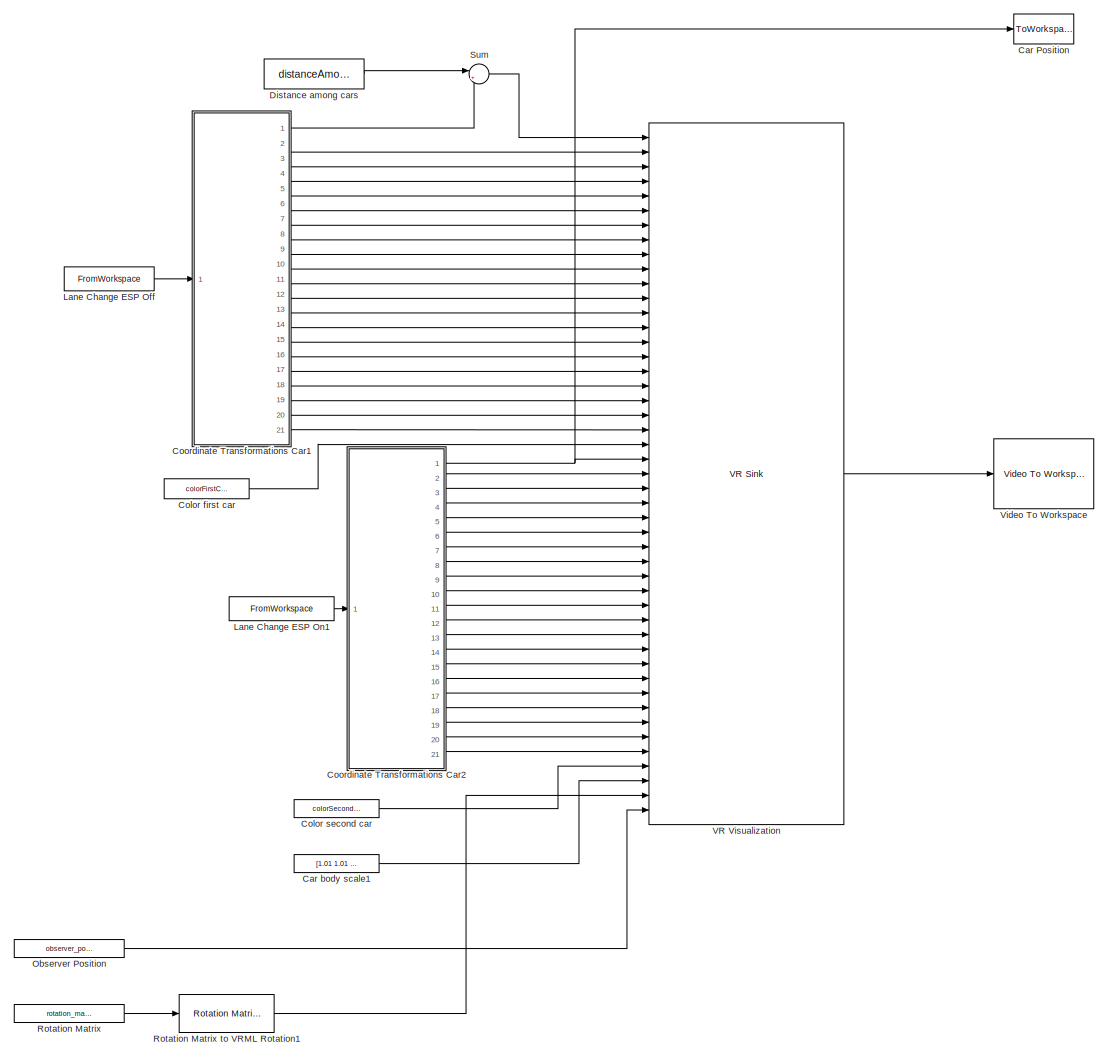
[diagram: root canvas - part 1/1, most of the canvas]
MODEL slx_81a003fe5353
KIND model
CONFIG AbsTol = auto
CONFIG FixedStep = auto
CONFIG MaxStep = auto
CONFIG MinStep = auto
CONFIG RelTol = 1e-3
CONFIG SampleTimeConstraint = Unconstrained
CONFIG Solver = VariableStepAuto
CONFIG SolverMode = Auto
CONFIG SolverName = VariableStepAuto
CONFIG StartTime = start_time
CONFIG StopTime = stop_time
BLOCK [ToWorkspace] Car Position
  FixptAsFi = on
  MaxDataPoints = 1
  Ports = [1]
  SampleTime = -1
  Save2DSignal = 3-D array (concatenate along third dimension)
  VariableName = car_position
BLOCK [Constant] Car body scale1
  Value = [1.01 1.01 1.01]
BLOCK [Constant] Color first car
  Value = colorFirstCar
BLOCK [Constant] Color second car
  Value = colorSecondCar
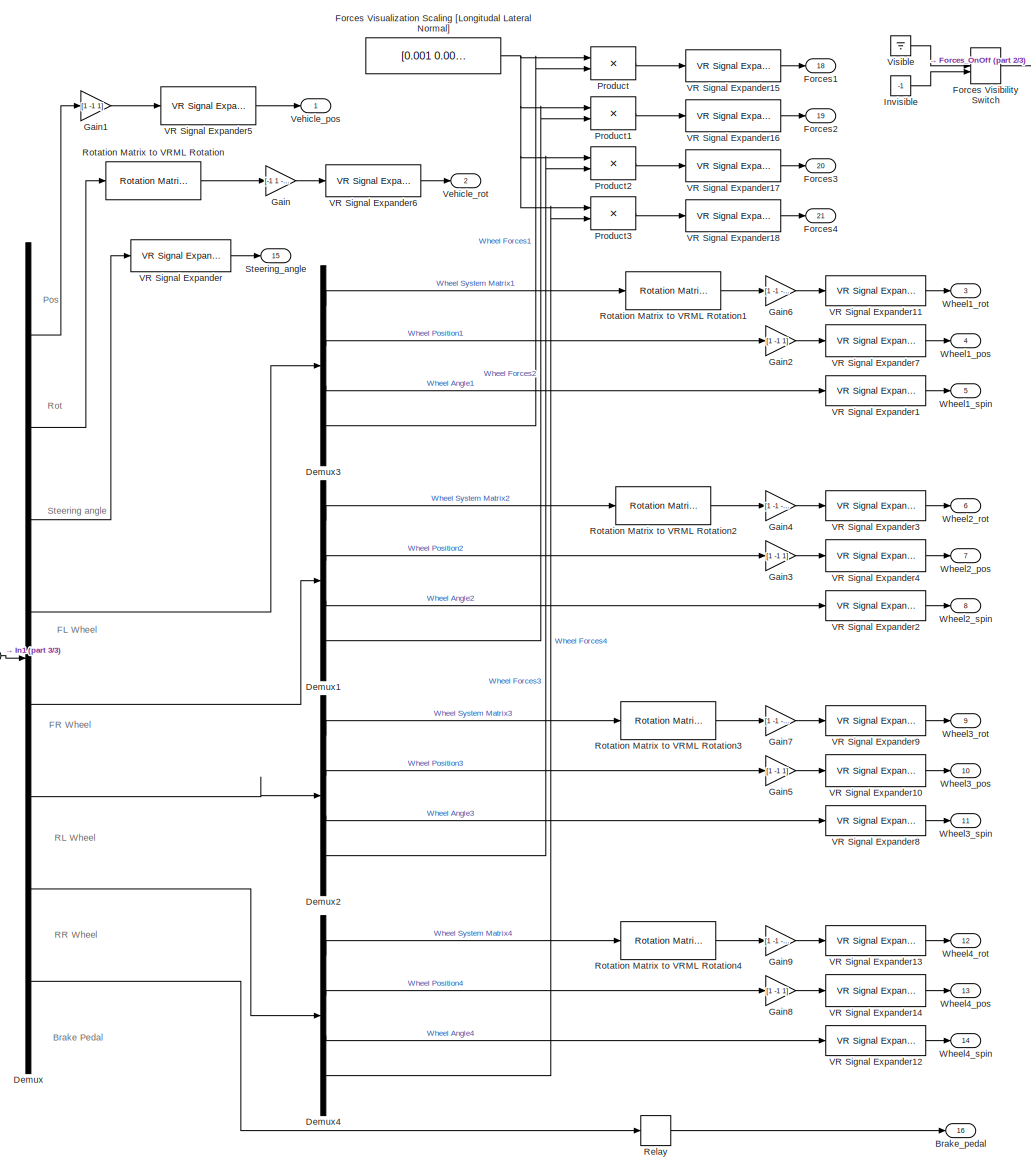
[diagram: Coordinate Transformations Car1 - part 1/3, most of the canvas]
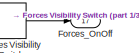
[diagram: Coordinate Transformations Car1 - part 2/3, top right region]
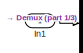
[diagram: Coordinate Transformations Car1 - part 3/3, middle left region]
BLOCK [SubSystem] Coordinate Transformations Car1
  Ports = [1, 21]
  RequestExecContextInheritance = off
  Variant = off
BLOCK [Outport] Coordinate Transformations Car1/Brake_pedal
  IconDisplay = Port number
  Port = 16
BLOCK [Demux] Coordinate Transformations Car1/Demux
  Outputs = [3,9,1,16,16,16,16,1]
  Ports = [1, 8]
BLOCK [Demux] Coordinate Transformations Car1/Demux1
  Outputs = [9,3,1,3]
  Ports = [1, 4]
BLOCK [Demux] Coordinate Transformations Car1/Demux2
  Outputs = [9,3,1,3]
  Ports = [1, 4]
BLOCK [Demux] Coordinate Transformations Car1/Demux3
  Outputs = [9,3,1,3]
  Ports = [1, 4]
BLOCK [Demux] Coordinate Transformations Car1/Demux4
  Outputs = [9,3,1,3]
  Ports = [1, 4]
BLOCK [ManualSwitch] Coordinate Transformations Car1/Forces Visibility Switch
BLOCK [Constant] Coordinate Transformations Car1/Forces Visualization Scaling [Longitudal Lateral Normal]
  Value = [0.001 0.001 0.00025]
BLOCK [Outport] Coordinate Transformations Car1/Forces1
  IconDisplay = Port number
  Port = 18
BLOCK [Outport] Coordinate Transformations Car1/Forces2
  IconDisplay = Port number
  Port = 19
BLOCK [Outport] Coordinate Transformations Car1/Forces3
  IconDisplay = Port number
  Port = 20
BLOCK [Outport] Coordinate Transformations Car1/Forces4
  IconDisplay = Port number
  Port = 21
BLOCK [Outport] Coordinate Transformations Car1/Forces_OnOff
  IconDisplay = Port number
  Port = 17
BLOCK [Gain] Coordinate Transformations Car1/Gain
  Gain = [-1 1 -1 1]
BLOCK [Gain] Coordinate Transformations Car1/Gain1
  Gain = [1 -1 1]
BLOCK [Gain] Coordinate Transformations Car1/Gain2
  Gain = [1 -1 1]
BLOCK [Gain] Coordinate Transformations Car1/Gain3
  Gain = [1 -1 1]
BLOCK [Gain] Coordinate Transformations Car1/Gain4
  Gain = [1 -1 -1 1]
BLOCK [Gain] Coordinate Transformations Car1/Gain5
  Gain = [1 -1 1]
BLOCK [Gain] Coordinate Transformations Car1/Gain6
  Gain = [1 -1 -1 1]
BLOCK [Gain] Coordinate Transformations Car1/Gain7
  Gain = [1 -1 -1 1]
BLOCK [Gain] Coordinate Transformations Car1/Gain8
  Gain = [1 -1 1]
BLOCK [Gain] Coordinate Transformations Car1/Gain9
  Gain = [1 -1 -1 1]
BLOCK [Inport] Coordinate Transformations Car1/In1
  IconDisplay = Port number
BLOCK [Constant] Coordinate Transformations Car1/Invisible
  Value = -1
BLOCK [Product] Coordinate Transformations Car1/Product
  InputSameDT = off
  Ports = [2, 1]
  RndMeth = Floor
BLOCK [Product] Coordinate Transformations Car1/Product1
  InputSameDT = off
  Ports = [2, 1]
  RndMeth = Floor
BLOCK [Product] Coordinate Transformations Car1/Product2
  InputSameDT = off
  Ports = [2, 1]
  RndMeth = Floor
BLOCK [Product] Coordinate Transformations Car1/Product3
  InputSameDT = off
  Ports = [2, 1]
  RndMeth = Floor
BLOCK [Relay] Coordinate Transformations Car1/Relay
BLOCK [Reference] Coordinate Transformations Car1/Rotation Matrix to VRML Rotation  REF=vrlib/Utilities/Rotation Matrix
to VRML Rotation
  Ports = [1, 1]
  SourceBlock = vrlib/Utilities/Rotation Matrix\nto VRML Rotation
  SourceType = Rotation Matrix to VRML Rotation
BLOCK [Reference] Coordinate Transformations Car1/Rotation Matrix to VRML Rotation1  REF=vrlib/Utilities/Rotation Matrix
to VRML Rotation
  Ports = [1, 1]
  SourceBlock = vrlib/Utilities/Rotation Matrix\nto VRML Rotation
  SourceType = Rotation Matrix to VRML Rotation
BLOCK [Reference] Coordinate Transformations Car1/Rotation Matrix to VRML Rotation2  REF=vrlib/Utilities/Rotation Matrix
to VRML Rotation
  Ports = [1, 1]
  SourceBlock = vrlib/Utilities/Rotation Matrix\nto VRML Rotation
  SourceType = Rotation Matrix to VRML Rotation
BLOCK [Reference] Coordinate Transformations Car1/Rotation Matrix to VRML Rotation3  REF=vrlib/Utilities/Rotation Matrix
to VRML Rotation
  Ports = [1, 1]
  SourceBlock = vrlib/Utilities/Rotation Matrix\nto VRML Rotation
  SourceType = Rotation Matrix to VRML Rotation
BLOCK [Reference] Coordinate Transformations Car1/Rotation Matrix to VRML Rotation4  REF=vrlib/Utilities/Rotation Matrix
to VRML Rotation
  Ports = [1, 1]
  SourceBlock = vrlib/Utilities/Rotation Matrix\nto VRML Rotation
  SourceType = Rotation Matrix to VRML Rotation
BLOCK [Outport] Coordinate Transformations Car1/Steering_angle
  IconDisplay = Port number
  Port = 15
BLOCK [Reference] Coordinate Transformations Car1/VR Signal Expander  REF=vrlib/VR Signal Expander
  Ports = [1, 1]
  SourceBlock = vrlib/VR Signal Expander
  SourceType = VR Signal Expander
BLOCK [Reference] Coordinate Transformations Car1/VR Signal Expander1  REF=vrlib/VR Signal Expander
  Ports = [1, 1]
  SourceBlock = vrlib/VR Signal Expander
  SourceType = VR Signal Expander
BLOCK [Reference] Coordinate Transformations Car1/VR Signal Expander10  REF=vrlib/VR Signal Expander
  Ports = [1, 1]
  SourceBlock = vrlib/VR Signal Expander
  SourceType = VR Signal Expander
BLOCK [Reference] Coordinate Transformations Car1/VR Signal Expander11  REF=vrlib/VR Signal Expander
  Ports = [1, 1]
  SourceBlock = vrlib/VR Signal Expander
  SourceType = VR Signal Expander
BLOCK [Reference] Coordinate Transformations Car1/VR Signal Expander12  REF=vrlib/VR Signal Expander
  Ports = [1, 1]
  SourceBlock = vrlib/VR Signal Expander
  SourceType = VR Signal Expander
BLOCK [Reference] Coordinate Transformations Car1/VR Signal Expander13  REF=vrlib/VR Signal Expander
  Ports = [1, 1]
  SourceBlock = vrlib/VR Signal Expander
  SourceType = VR Signal Expander
BLOCK [Reference] Coordinate Transformations Car1/VR Signal Expander14  REF=vrlib/VR Signal Expander
  Ports = [1, 1]
  SourceBlock = vrlib/VR Signal Expander
  SourceType = VR Signal Expander
BLOCK [Reference] Coordinate Transformations Car1/VR Signal Expander15  REF=vrlib/VR Signal Expander
  Ports = [1, 1]
  SourceBlock = vrlib/VR Signal Expander
  SourceType = VR Signal Expander
BLOCK [Reference] Coordinate Transformations Car1/VR Signal Expander16  REF=vrlib/VR Signal Expander
  Ports = [1, 1]
  SourceBlock = vrlib/VR Signal Expander
  SourceType = VR Signal Expander
BLOCK [Reference] Coordinate Transformations Car1/VR Signal Expander17  REF=vrlib/VR Signal Expander
  Ports = [1, 1]
  SourceBlock = vrlib/VR Signal Expander
  SourceType = VR Signal Expander
BLOCK [Reference] Coordinate Transformations Car1/VR Signal Expander18  REF=vrlib/VR Signal Expander
  Ports = [1, 1]
  SourceBlock = vrlib/VR Signal Expander
  SourceType = VR Signal Expander
BLOCK [Reference] Coordinate Transformations Car1/VR Signal Expander2  REF=vrlib/VR Signal Expander
  Ports = [1, 1]
  SourceBlock = vrlib/VR Signal Expander
  SourceType = VR Signal Expander
BLOCK [Reference] Coordinate Transformations Car1/VR Signal Expander3  REF=vrlib/VR Signal Expander
  Ports = [1, 1]
  SourceBlock = vrlib/VR Signal Expander
  SourceType = VR Signal Expander
BLOCK [Reference] Coordinate Transformations Car1/VR Signal Expander4  REF=vrlib/VR Signal Expander
  Ports = [1, 1]
  SourceBlock = vrlib/VR Signal Expander
  SourceType = VR Signal Expander
BLOCK [Reference] Coordinate Transformations Car1/VR Signal Expander5  REF=vrlib/VR Signal Expander
  Ports = [1, 1]
  SourceBlock = vrlib/VR Signal Expander
  SourceType = VR Signal Expander
BLOCK [Reference] Coordinate Transformations Car1/VR Signal Expander6  REF=vrlib/VR Signal Expander
  Ports = [1, 1]
  SourceBlock = vrlib/VR Signal Expander
  SourceType = VR Signal Expander
BLOCK [Reference] Coordinate Transformations Car1/VR Signal Expander7  REF=vrlib/VR Signal Expander
  Ports = [1, 1]
  SourceBlock = vrlib/VR Signal Expander
  SourceType = VR Signal Expander
BLOCK [Reference] Coordinate Transformations Car1/VR Signal Expander8  REF=vrlib/VR Signal Expander
  Ports = [1, 1]
  SourceBlock = vrlib/VR Signal Expander
  SourceType = VR Signal Expander
BLOCK [Reference] Coordinate Transformations Car1/VR Signal Expander9  REF=vrlib/VR Signal Expander
  Ports = [1, 1]
  SourceBlock = vrlib/VR Signal Expander
  SourceType = VR Signal Expander
BLOCK [Outport] Coordinate Transformations Car1/Vehicle_pos
  IconDisplay = Port number
BLOCK [Outport] Coordinate Transformations Car1/Vehicle_rot
  IconDisplay = Port number
  Port = 2
BLOCK [Ground] Coordinate Transformations Car1/Visible
BLOCK [Outport] Coordinate Transformations Car1/Wheel1_pos
  IconDisplay = Port number
  Port = 4
BLOCK [Outport] Coordinate Transformations Car1/Wheel1_rot
  IconDisplay = Port number
  Port = 3
BLOCK [Outport] Coordinate Transformations Car1/Wheel1_spin
  IconDisplay = Port number
  Port = 5
BLOCK [Outport] Coordinate Transformations Car1/Wheel2_pos
  IconDisplay = Port number
  Port = 7
BLOCK [Outport] Coordinate Transformations Car1/Wheel2_rot
  IconDisplay = Port number
  Port = 6
BLOCK [Outport] Coordinate Transformations Car1/Wheel2_spin
  IconDisplay = Port number
  Port = 8
BLOCK [Outport] Coordinate Transformations Car1/Wheel3_pos
  IconDisplay = Port number
  Port = 10
BLOCK [Outport] Coordinate Transformations Car1/Wheel3_rot
  IconDisplay = Port number
  Port = 9
BLOCK [Outport] Coordinate Transformations Car1/Wheel3_spin
  IconDisplay = Port number
  Port = 11
BLOCK [Outport] Coordinate Transformations Car1/Wheel4_pos
  IconDisplay = Port number
  Port = 13
BLOCK [Outport] Coordinate Transformations Car1/Wheel4_rot
  IconDisplay = Port number
  Port = 12
BLOCK [Outport] Coordinate Transformations Car1/Wheel4_spin
  IconDisplay = Port number
  Port = 14
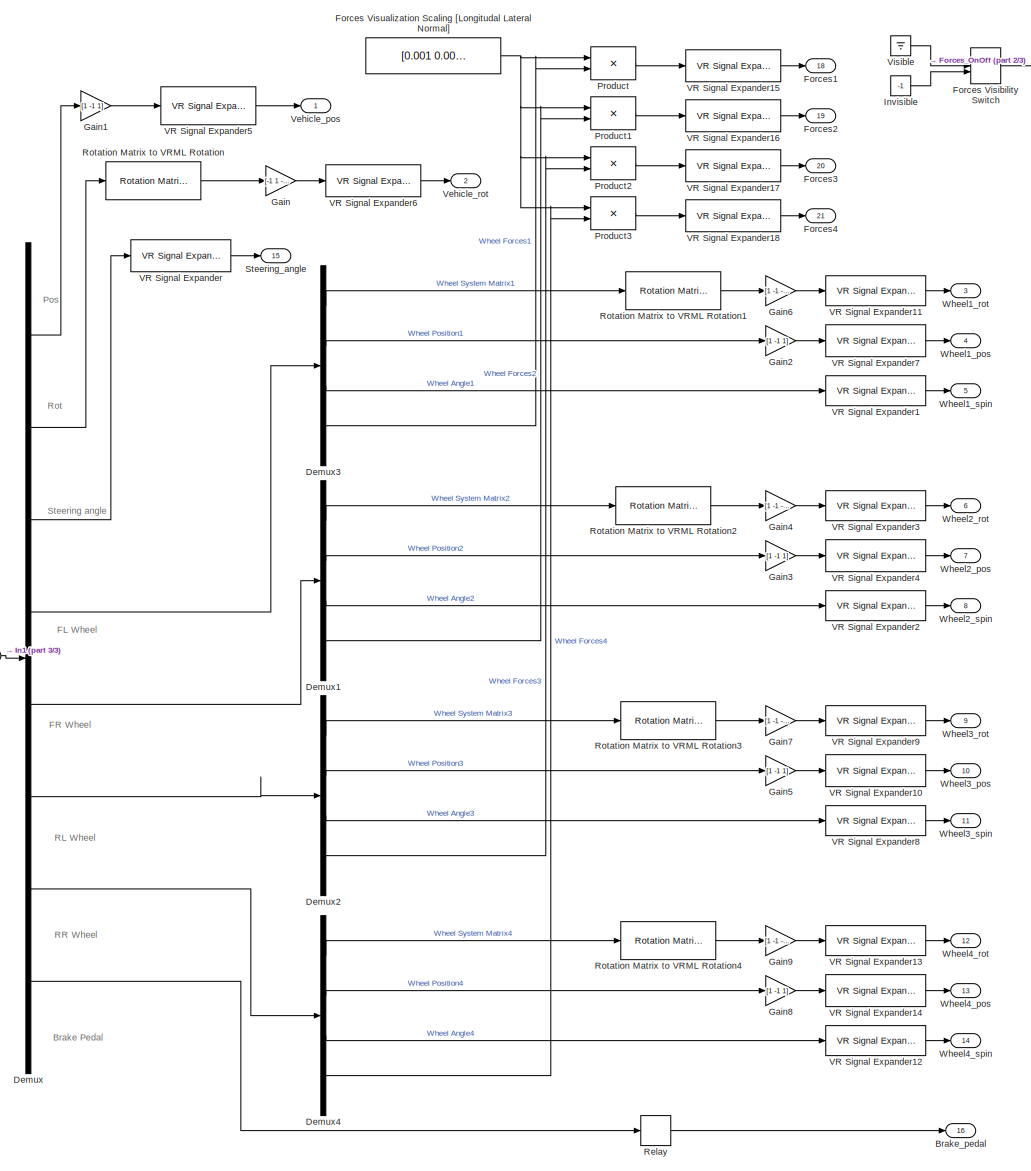
[diagram: Coordinate Transformations Car2 - part 1/3, most of the canvas]
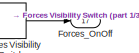
[diagram: Coordinate Transformations Car2 - part 2/3, top right region]
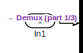
[diagram: Coordinate Transformations Car2 - part 3/3, middle left region]
BLOCK [SubSystem] Coordinate Transformations Car2
  Ports = [1, 21]
  RequestExecContextInheritance = off
  Variant = off
BLOCK [Outport] Coordinate Transformations Car2/Brake_pedal
  IconDisplay = Port number
  Port = 16
BLOCK [Demux] Coordinate Transformations Car2/Demux
  Outputs = [3,9,1,16,16,16,16,1]
  Ports = [1, 8]
BLOCK [Demux] Coordinate Transformations Car2/Demux1
  Outputs = [9,3,1,3]
  Ports = [1, 4]
BLOCK [Demux] Coordinate Transformations Car2/Demux2
  Outputs = [9,3,1,3]
  Ports = [1, 4]
BLOCK [Demux] Coordinate Transformations Car2/Demux3
  Outputs = [9,3,1,3]
  Ports = [1, 4]
BLOCK [Demux] Coordinate Transformations Car2/Demux4
  Outputs = [9,3,1,3]
  Ports = [1, 4]
BLOCK [ManualSwitch] Coordinate Transformations Car2/Forces Visibility Switch
  CurrentSetting = 0
BLOCK [Constant] Coordinate Transformations Car2/Forces Visualization Scaling [Longitudal Lateral Normal]
  Value = [0.001 0.001 0.00025]
BLOCK [Outport] Coordinate Transformations Car2/Forces1
  IconDisplay = Port number
  Port = 18
BLOCK [Outport] Coordinate Transformations Car2/Forces2
  IconDisplay = Port number
  Port = 19
BLOCK [Outport] Coordinate Transformations Car2/Forces3
  IconDisplay = Port number
  Port = 20
BLOCK [Outport] Coordinate Transformations Car2/Forces4
  IconDisplay = Port number
  Port = 21
BLOCK [Outport] Coordinate Transformations Car2/Forces_OnOff
  IconDisplay = Port number
  Port = 17
BLOCK [Gain] Coordinate Transformations Car2/Gain
  Gain = [-1 1 -1 1]
BLOCK [Gain] Coordinate Transformations Car2/Gain1
  Gain = [1 -1 1]
BLOCK [Gain] Coordinate Transformations Car2/Gain2
  Gain = [1 -1 1]
BLOCK [Gain] Coordinate Transformations Car2/Gain3
  Gain = [1 -1 1]
BLOCK [Gain] Coordinate Transformations Car2/Gain4
  Gain = [1 -1 -1 1]
BLOCK [Gain] Coordinate Transformations Car2/Gain5
  Gain = [1 -1 1]
BLOCK [Gain] Coordinate Transformations Car2/Gain6
  Gain = [1 -1 -1 1]
BLOCK [Gain] Coordinate Transformations Car2/Gain7
  Gain = [1 -1 -1 1]
BLOCK [Gain] Coordinate Transformations Car2/Gain8
  Gain = [1 -1 1]
BLOCK [Gain] Coordinate Transformations Car2/Gain9
  Gain = [1 -1 -1 1]
BLOCK [Inport] Coordinate Transformations Car2/In1
  IconDisplay = Port number
BLOCK [Constant] Coordinate Transformations Car2/Invisible
  Value = -1
BLOCK [Product] Coordinate Transformations Car2/Product
  InputSameDT = off
  Ports = [2, 1]
  RndMeth = Floor
BLOCK [Product] Coordinate Transformations Car2/Product1
  InputSameDT = off
  Ports = [2, 1]
  RndMeth = Floor
BLOCK [Product] Coordinate Transformations Car2/Product2
  InputSameDT = off
  Ports = [2, 1]
  RndMeth = Floor
BLOCK [Product] Coordinate Transformations Car2/Product3
  InputSameDT = off
  Ports = [2, 1]
  RndMeth = Floor
BLOCK [Relay] Coordinate Transformations Car2/Relay
BLOCK [Reference] Coordinate Transformations Car2/Rotation Matrix to VRML Rotation  REF=vrlib/Utilities/Rotation Matrix
to VRML Rotation
  Ports = [1, 1]
  SourceBlock = vrlib/Utilities/Rotation Matrix\nto VRML Rotation
  SourceType = Rotation Matrix to VRML Rotation
BLOCK [Reference] Coordinate Transformations Car2/Rotation Matrix to VRML Rotation1  REF=vrlib/Utilities/Rotation Matrix
to VRML Rotation
  Ports = [1, 1]
  SourceBlock = vrlib/Utilities/Rotation Matrix\nto VRML Rotation
  SourceType = Rotation Matrix to VRML Rotation
BLOCK [Reference] Coordinate Transformations Car2/Rotation Matrix to VRML Rotation2  REF=vrlib/Utilities/Rotation Matrix
to VRML Rotation
  Ports = [1, 1]
  SourceBlock = vrlib/Utilities/Rotation Matrix\nto VRML Rotation
  SourceType = Rotation Matrix to VRML Rotation
BLOCK [Reference] Coordinate Transformations Car2/Rotation Matrix to VRML Rotation3  REF=vrlib/Utilities/Rotation Matrix
to VRML Rotation
  Ports = [1, 1]
  SourceBlock = vrlib/Utilities/Rotation Matrix\nto VRML Rotation
  SourceType = Rotation Matrix to VRML Rotation
BLOCK [Reference] Coordinate Transformations Car2/Rotation Matrix to VRML Rotation4  REF=vrlib/Utilities/Rotation Matrix
to VRML Rotation
  Ports = [1, 1]
  SourceBlock = vrlib/Utilities/Rotation Matrix\nto VRML Rotation
  SourceType = Rotation Matrix to VRML Rotation
BLOCK [Outport] Coordinate Transformations Car2/Steering_angle
  IconDisplay = Port number
  Port = 15
BLOCK [Reference] Coordinate Transformations Car2/VR Signal Expander  REF=vrlib/VR Signal Expander
  Ports = [1, 1]
  SourceBlock = vrlib/VR Signal Expander
  SourceType = VR Signal Expander
BLOCK [Reference] Coordinate Transformations Car2/VR Signal Expander1  REF=vrlib/VR Signal Expander
  Ports = [1, 1]
  SourceBlock = vrlib/VR Signal Expander
  SourceType = VR Signal Expander
BLOCK [Reference] Coordinate Transformations Car2/VR Signal Expander10  REF=vrlib/VR Signal Expander
  Ports = [1, 1]
  SourceBlock = vrlib/VR Signal Expander
  SourceType = VR Signal Expander
BLOCK [Reference] Coordinate Transformations Car2/VR Signal Expander11  REF=vrlib/VR Signal Expander
  Ports = [1, 1]
  SourceBlock = vrlib/VR Signal Expander
  SourceType = VR Signal Expander
BLOCK [Reference] Coordinate Transformations Car2/VR Signal Expander12  REF=vrlib/VR Signal Expander
  Ports = [1, 1]
  SourceBlock = vrlib/VR Signal Expander
  SourceType = VR Signal Expander
BLOCK [Reference] Coordinate Transformations Car2/VR Signal Expander13  REF=vrlib/VR Signal Expander
  Ports = [1, 1]
  SourceBlock = vrlib/VR Signal Expander
  SourceType = VR Signal Expander
BLOCK [Reference] Coordinate Transformations Car2/VR Signal Expander14  REF=vrlib/VR Signal Expander
  Ports = [1, 1]
  SourceBlock = vrlib/VR Signal Expander
  SourceType = VR Signal Expander
BLOCK [Reference] Coordinate Transformations Car2/VR Signal Expander15  REF=vrlib/VR Signal Expander
  Ports = [1, 1]
  SourceBlock = vrlib/VR Signal Expander
  SourceType = VR Signal Expander
BLOCK [Reference] Coordinate Transformations Car2/VR Signal Expander16  REF=vrlib/VR Signal Expander
  Ports = [1, 1]
  SourceBlock = vrlib/VR Signal Expander
  SourceType = VR Signal Expander
BLOCK [Reference] Coordinate Transformations Car2/VR Signal Expander17  REF=vrlib/VR Signal Expander
  Ports = [1, 1]
  SourceBlock = vrlib/VR Signal Expander
  SourceType = VR Signal Expander
BLOCK [Reference] Coordinate Transformations Car2/VR Signal Expander18  REF=vrlib/VR Signal Expander
  Ports = [1, 1]
  SourceBlock = vrlib/VR Signal Expander
  SourceType = VR Signal Expander
BLOCK [Reference] Coordinate Transformations Car2/VR Signal Expander2  REF=vrlib/VR Signal Expander
  Ports = [1, 1]
  SourceBlock = vrlib/VR Signal Expander
  SourceType = VR Signal Expander
BLOCK [Reference] Coordinate Transformations Car2/VR Signal Expander3  REF=vrlib/VR Signal Expander
  Ports = [1, 1]
  SourceBlock = vrlib/VR Signal Expander
  SourceType = VR Signal Expander
BLOCK [Reference] Coordinate Transformations Car2/VR Signal Expander4  REF=vrlib/VR Signal Expander
  Ports = [1, 1]
  SourceBlock = vrlib/VR Signal Expander
  SourceType = VR Signal Expander
BLOCK [Reference] Coordinate Transformations Car2/VR Signal Expander5  REF=vrlib/VR Signal Expander
  Ports = [1, 1]
  SourceBlock = vrlib/VR Signal Expander
  SourceType = VR Signal Expander
BLOCK [Reference] Coordinate Transformations Car2/VR Signal Expander6  REF=vrlib/VR Signal Expander
  Ports = [1, 1]
  SourceBlock = vrlib/VR Signal Expander
  SourceType = VR Signal Expander
BLOCK [Reference] Coordinate Transformations Car2/VR Signal Expander7  REF=vrlib/VR Signal Expander
  Ports = [1, 1]
  SourceBlock = vrlib/VR Signal Expander
  SourceType = VR Signal Expander
BLOCK [Reference] Coordinate Transformations Car2/VR Signal Expander8  REF=vrlib/VR Signal Expander
  Ports = [1, 1]
  SourceBlock = vrlib/VR Signal Expander
  SourceType = VR Signal Expander
BLOCK [Reference] Coordinate Transformations Car2/VR Signal Expander9  REF=vrlib/VR Signal Expander
  Ports = [1, 1]
  SourceBlock = vrlib/VR Signal Expander
  SourceType = VR Signal Expander
BLOCK [Outport] Coordinate Transformations Car2/Vehicle_pos
  IconDisplay = Port number
BLOCK [Outport] Coordinate Transformations Car2/Vehicle_rot
  IconDisplay = Port number
  Port = 2
BLOCK [Ground] Coordinate Transformations Car2/Visible
BLOCK [Outport] Coordinate Transformations Car2/Wheel1_pos
  IconDisplay = Port number
  Port = 4
BLOCK [Outport] Coordinate Transformations Car2/Wheel1_rot
  IconDisplay = Port number
  Port = 3
BLOCK [Outport] Coordinate Transformations Car2/Wheel1_spin
  IconDisplay = Port number
  Port = 5
BLOCK [Outport] Coordinate Transformations Car2/Wheel2_pos
  IconDisplay = Port number
  Port = 7
BLOCK [Outport] Coordinate Transformations Car2/Wheel2_rot
  IconDisplay = Port number
  Port = 6
BLOCK [Outport] Coordinate Transformations Car2/Wheel2_spin
  IconDisplay = Port number
  Port = 8
BLOCK [Outport] Coordinate Transformations Car2/Wheel3_pos
  IconDisplay = Port number
  Port = 10
BLOCK [Outport] Coordinate Transformations Car2/Wheel3_rot
  IconDisplay = Port number
  Port = 9
BLOCK [Outport] Coordinate Transformations Car2/Wheel3_spin
  IconDisplay = Port number
  Port = 11
BLOCK [Outport] Coordinate Transformations Car2/Wheel4_pos
  IconDisplay = Port number
  Port = 13
BLOCK [Outport] Coordinate Transformations Car2/Wheel4_rot
  IconDisplay = Port number
  Port = 12
BLOCK [Outport] Coordinate Transformations Car2/Wheel4_spin
  IconDisplay = Port number
  Port = 14
BLOCK [Constant] Distance among cars
  Value = distanceAmongCars
BLOCK [FromWorkspace] Lane Change ESP Off 
  OutputAfterFinalValue = Holding final value
  SampleTime = simulationStep
  VariableName = esp_off
BLOCK [FromWorkspace] Lane Change ESP On1
  OutputAfterFinalValue = Holding final value
  SampleTime = simulationStep
  VariableName = esp_on
BLOCK [Constant] Observer Position
  Value = observer_position
BLOCK [Constant] Rotation Matrix
  Value = rotation_matrix
BLOCK [Reference] Rotation Matrix to VRML Rotation1  REF=vrlib/Utilities/Rotation Matrix
to VRML Rotation
  Ports = [1, 1]
  SourceBlock = vrlib/Utilities/Rotation Matrix\nto VRML Rotation
  SourceType = Rotation Matrix to VRML Rotation
BLOCK [Sum] Sum
  IconShape = round
  InputSameDT = off
  Inputs = |++
  OutDataTypeStr = Inherit: Inherit via internal rule
  Ports = [2, 1]
  SaturateOnIntegerOverflow = off
BLOCK [Reference] VR Visualization  REF=vrlib/VR Sink
  InstantiateOnLoad = on
  Ports = [47, 1]
  SourceBlock = vrlib/VR Sink
  SourceType = Virtual Reality Sink
BLOCK [Reference] Video To Workspace  REF=visionsinks/Video To Workspace
  Ports = [1]
  SourceBlock = visionsinks/Video To Workspace
  SourceType = Video To Workspace
ANNOTATION Coordinate Transformations Car1: Brake Pedal
ANNOTATION Coordinate Transformations Car1: FL Wheel
ANNOTATION Coordinate Transformations Car1: FR Wheel
ANNOTATION Coordinate Transformations Car1: Pos
ANNOTATION Coordinate Transformations Car1: RL Wheel
ANNOTATION Coordinate Transformations Car1: RR Wheel
ANNOTATION Coordinate Transformations Car1: Rot
ANNOTATION Coordinate Transformations Car1: Steering angle
ANNOTATION Coordinate Transformations Car2: Brake Pedal
ANNOTATION Coordinate Transformations Car2: FL Wheel
ANNOTATION Coordinate Transformations Car2: FR Wheel
ANNOTATION Coordinate Transformations Car2: Pos
ANNOTATION Coordinate Transformations Car2: RL Wheel
ANNOTATION Coordinate Transformations Car2: RR Wheel
ANNOTATION Coordinate Transformations Car2: Rot
ANNOTATION Coordinate Transformations Car2: Steering angle
LINE Car body scale1:1 -> VR Visualization:45
LINE Color first car:1 -> VR Visualization:22
LINE Color second car:1 -> VR Visualization:44
LINE Coordinate Transformations Car1/Demux1:1 -> Coordinate Transformations Car1/Rotation Matrix to VRML Rotation2:1
LINE Coordinate Transformations Car1/Demux1:2 -> Coordinate Transformations Car1/Gain3:1
LINE Coordinate Transformations Car1/Demux1:3 -> Coordinate Transformations Car1/VR Signal Expander2:1
LINE Coordinate Transformations Car1/Demux1:4 -> Coordinate Transformations Car1/Product1:2
LINE Coordinate Transformations Car1/Demux2:1 -> Coordinate Transformations Car1/Rotation Matrix to VRML Rotation3:1
LINE Coordinate Transformations Car1/Demux2:2 -> Coordinate Transformations Car1/Gain5:1
LINE Coordinate Transformations Car1/Demux2:3 -> Coordinate Transformations Car1/VR Signal Expander8:1
LINE Coordinate Transformations Car1/Demux2:4 -> Coordinate Transformations Car1/Product2:2
LINE Coordinate Transformations Car1/Demux3:1 -> Coordinate Transformations Car1/Rotation Matrix to VRML Rotation1:1
LINE Coordinate Transformations Car1/Demux3:2 -> Coordinate Transformations Car1/Gain2:1
LINE Coordinate Transformations Car1/Demux3:3 -> Coordinate Transformations Car1/VR Signal Expander1:1
LINE Coordinate Transformations Car1/Demux3:4 -> Coordinate Transformations Car1/Product:2
LINE Coordinate Transformations Car1/Demux4:1 -> Coordinate Transformations Car1/Rotation Matrix to VRML Rotation4:1
LINE Coordinate Transformations Car1/Demux4:2 -> Coordinate Transformations Car1/Gain8:1
LINE Coordinate Transformations Car1/Demux4:3 -> Coordinate Transformations Car1/VR Signal Expander12:1
LINE Coordinate Transformations Car1/Demux4:4 -> Coordinate Transformations Car1/Product3:2
LINE Coordinate Transformations Car1/Demux:1 -> Coordinate Transformations Car1/Gain1:1
LINE Coordinate Transformations Car1/Demux:2 -> Coordinate Transformations Car1/Rotation Matrix to VRML Rotation:1
LINE Coordinate Transformations Car1/Demux:3 -> Coordinate Transformations Car1/VR Signal Expander:1
LINE Coordinate Transformations Car1/Demux:4 -> Coordinate Transformations Car1/Demux3:1
LINE Coordinate Transformations Car1/Demux:5 -> Coordinate Transformations Car1/Demux1:1
LINE Coordinate Transformations Car1/Demux:6 -> Coordinate Transformations Car1/Demux2:1
LINE Coordinate Transformations Car1/Demux:7 -> Coordinate Transformations Car1/Demux4:1
LINE Coordinate Transformations Car1/Demux:8 -> Coordinate Transformations Car1/Relay:1
LINE Coordinate Transformations Car1/Forces Visibility Switch:1 -> Coordinate Transformations Car1/Forces_OnOff:1
NET Coordinate Transformations Car1/Forces Visualization Scaling [Longitudal Lateral Normal]:1 -> Coordinate Transformations Car1/Product1:1, Coordinate Transformations Car1/Product2:1, Coordinate Transformations Car1/Product3:1, Coordinate Transformations Car1/Product:1
LINE Coordinate Transformations Car1/Gain1:1 -> Coordinate Transformations Car1/VR Signal Expander5:1
LINE Coordinate Transformations Car1/Gain2:1 -> Coordinate Transformations Car1/VR Signal Expander7:1
LINE Coordinate Transformations Car1/Gain3:1 -> Coordinate Transformations Car1/VR Signal Expander4:1
LINE Coordinate Transformations Car1/Gain4:1 -> Coordinate Transformations Car1/VR Signal Expander3:1
LINE Coordinate Transformations Car1/Gain5:1 -> Coordinate Transformations Car1/VR Signal Expander10:1
LINE Coordinate Transformations Car1/Gain6:1 -> Coordinate Transformations Car1/VR Signal Expander11:1
LINE Coordinate Transformations Car1/Gain7:1 -> Coordinate Transformations Car1/VR Signal Expander9:1
LINE Coordinate Transformations Car1/Gain8:1 -> Coordinate Transformations Car1/VR Signal Expander14:1
LINE Coordinate Transformations Car1/Gain9:1 -> Coordinate Transformations Car1/VR Signal Expander13:1
LINE Coordinate Transformations Car1/Gain:1 -> Coordinate Transformations Car1/VR Signal Expander6:1
LINE Coordinate Transformations Car1/In1:1 -> Coordinate Transformations Car1/Demux:1
LINE Coordinate Transformations Car1/Invisible:1 -> Coordinate Transformations Car1/Forces Visibility Switch:2
LINE Coordinate Transformations Car1/Product1:1 -> Coordinate Transformations Car1/VR Signal Expander16:1
LINE Coordinate Transformations Car1/Product2:1 -> Coordinate Transformations Car1/VR Signal Expander17:1
LINE Coordinate Transformations Car1/Product3:1 -> Coordinate Transformations Car1/VR Signal Expander18:1
LINE Coordinate Transformations Car1/Product:1 -> Coordinate Transformations Car1/VR Signal Expander15:1
LINE Coordinate Transformations Car1/Relay:1 -> Coordinate Transformations Car1/Brake_pedal:1
LINE Coordinate Transformations Car1/Rotation Matrix to VRML Rotation1:1 -> Coordinate Transformations Car1/Gain6:1
LINE Coordinate Transformations Car1/Rotation Matrix to VRML Rotation2:1 -> Coordinate Transformations Car1/Gain4:1
LINE Coordinate Transformations Car1/Rotation Matrix to VRML Rotation3:1 -> Coordinate Transformations Car1/Gain7:1
LINE Coordinate Transformations Car1/Rotation Matrix to VRML Rotation4:1 -> Coordinate Transformations Car1/Gain9:1
LINE Coordinate Transformations Car1/Rotation Matrix to VRML Rotation:1 -> Coordinate Transformations Car1/Gain:1
LINE Coordinate Transformations Car1/VR Signal Expander10:1 -> Coordinate Transformations Car1/Wheel3_pos:1
LINE Coordinate Transformations Car1/VR Signal Expander11:1 -> Coordinate Transformations Car1/Wheel1_rot:1
LINE Coordinate Transformations Car1/VR Signal Expander12:1 -> Coordinate Transformations Car1/Wheel4_spin:1
LINE Coordinate Transformations Car1/VR Signal Expander13:1 -> Coordinate Transformations Car1/Wheel4_rot:1
LINE Coordinate Transformations Car1/VR Signal Expander14:1 -> Coordinate Transformations Car1/Wheel4_pos:1
LINE Coordinate Transformations Car1/VR Signal Expander15:1 -> Coordinate Transformations Car1/Forces1:1
LINE Coordinate Transformations Car1/VR Signal Expander16:1 -> Coordinate Transformations Car1/Forces2:1
LINE Coordinate Transformations Car1/VR Signal Expander17:1 -> Coordinate Transformations Car1/Forces3:1
LINE Coordinate Transformations Car1/VR Signal Expander18:1 -> Coordinate Transformations Car1/Forces4:1
LINE Coordinate Transformations Car1/VR Signal Expander1:1 -> Coordinate Transformations Car1/Wheel1_spin:1
LINE Coordinate Transformations Car1/VR Signal Expander2:1 -> Coordinate Transformations Car1/Wheel2_spin:1
LINE Coordinate Transformations Car1/VR Signal Expander3:1 -> Coordinate Transformations Car1/Wheel2_rot:1
LINE Coordinate Transformations Car1/VR Signal Expander4:1 -> Coordinate Transformations Car1/Wheel2_pos:1
LINE Coordinate Transformations Car1/VR Signal Expander5:1 -> Coordinate Transformations Car1/Vehicle_pos:1
LINE Coordinate Transformations Car1/VR Signal Expander6:1 -> Coordinate Transformations Car1/Vehicle_rot:1
LINE Coordinate Transformations Car1/VR Signal Expander7:1 -> Coordinate Transformations Car1/Wheel1_pos:1
LINE Coordinate Transformations Car1/VR Signal Expander8:1 -> Coordinate Transformations Car1/Wheel3_spin:1
LINE Coordinate Transformations Car1/VR Signal Expander9:1 -> Coordinate Transformations Car1/Wheel3_rot:1
LINE Coordinate Transformations Car1/VR Signal Expander:1 -> Coordinate Transformations Car1/Steering_angle:1
LINE Coordinate Transformations Car1/Visible:1 -> Coordinate Transformations Car1/Forces Visibility Switch:1
LINE Coordinate Transformations Car1:1 -> Sum:2
LINE Coordinate Transformations Car1:10 -> VR Visualization:10
LINE Coordinate Transformations Car1:11 -> VR Visualization:11
LINE Coordinate Transformations Car1:12 -> VR Visualization:12
LINE Coordinate Transformations Car1:13 -> VR Visualization:13
LINE Coordinate Transformations Car1:14 -> VR Visualization:14
LINE Coordinate Transformations Car1:15 -> VR Visualization:15
LINE Coordinate Transformations Car1:16 -> VR Visualization:16
LINE Coordinate Transformations Car1:17 -> VR Visualization:17
LINE Coordinate Transformations Car1:18 -> VR Visualization:18
LINE Coordinate Transformations Car1:19 -> VR Visualization:19
LINE Coordinate Transformations Car1:2 -> VR Visualization:2
LINE Coordinate Transformations Car1:20 -> VR Visualization:20
LINE Coordinate Transformations Car1:21 -> VR Visualization:21
LINE Coordinate Transformations Car1:3 -> VR Visualization:3
LINE Coordinate Transformations Car1:4 -> VR Visualization:4
LINE Coordinate Transformations Car1:5 -> VR Visualization:5
LINE Coordinate Transformations Car1:6 -> VR Visualization:6
LINE Coordinate Transformations Car1:7 -> VR Visualization:7
LINE Coordinate Transformations Car1:8 -> VR Visualization:8
LINE Coordinate Transformations Car1:9 -> VR Visualization:9
LINE Coordinate Transformations Car2/Demux1:1 -> Coordinate Transformations Car2/Rotation Matrix to VRML Rotation2:1
LINE Coordinate Transformations Car2/Demux1:2 -> Coordinate Transformations Car2/Gain3:1
LINE Coordinate Transformations Car2/Demux1:3 -> Coordinate Transformations Car2/VR Signal Expander2:1
LINE Coordinate Transformations Car2/Demux1:4 -> Coordinate Transformations Car2/Product1:2
LINE Coordinate Transformations Car2/Demux2:1 -> Coordinate Transformations Car2/Rotation Matrix to VRML Rotation3:1
LINE Coordinate Transformations Car2/Demux2:2 -> Coordinate Transformations Car2/Gain5:1
LINE Coordinate Transformations Car2/Demux2:3 -> Coordinate Transformations Car2/VR Signal Expander8:1
LINE Coordinate Transformations Car2/Demux2:4 -> Coordinate Transformations Car2/Product2:2
LINE Coordinate Transformations Car2/Demux3:1 -> Coordinate Transformations Car2/Rotation Matrix to VRML Rotation1:1
LINE Coordinate Transformations Car2/Demux3:2 -> Coordinate Transformations Car2/Gain2:1
LINE Coordinate Transformations Car2/Demux3:3 -> Coordinate Transformations Car2/VR Signal Expander1:1
LINE Coordinate Transformations Car2/Demux3:4 -> Coordinate Transformations Car2/Product:2
LINE Coordinate Transformations Car2/Demux4:1 -> Coordinate Transformations Car2/Rotation Matrix to VRML Rotation4:1
LINE Coordinate Transformations Car2/Demux4:2 -> Coordinate Transformations Car2/Gain8:1
LINE Coordinate Transformations Car2/Demux4:3 -> Coordinate Transformations Car2/VR Signal Expander12:1
LINE Coordinate Transformations Car2/Demux4:4 -> Coordinate Transformations Car2/Product3:2
LINE Coordinate Transformations Car2/Demux:1 -> Coordinate Transformations Car2/Gain1:1
LINE Coordinate Transformations Car2/Demux:2 -> Coordinate Transformations Car2/Rotation Matrix to VRML Rotation:1
LINE Coordinate Transformations Car2/Demux:3 -> Coordinate Transformations Car2/VR Signal Expander:1
LINE Coordinate Transformations Car2/Demux:4 -> Coordinate Transformations Car2/Demux3:1
LINE Coordinate Transformations Car2/Demux:5 -> Coordinate Transformations Car2/Demux1:1
LINE Coordinate Transformations Car2/Demux:6 -> Coordinate Transformations Car2/Demux2:1
LINE Coordinate Transformations Car2/Demux:7 -> Coordinate Transformations Car2/Demux4:1
LINE Coordinate Transformations Car2/Demux:8 -> Coordinate Transformations Car2/Relay:1
LINE Coordinate Transformations Car2/Forces Visibility Switch:1 -> Coordinate Transformations Car2/Forces_OnOff:1
NET Coordinate Transformations Car2/Forces Visualization Scaling [Longitudal Lateral Normal]:1 -> Coordinate Transformations Car2/Product1:1, Coordinate Transformations Car2/Product2:1, Coordinate Transformations Car2/Product3:1, Coordinate Transformations Car2/Product:1
LINE Coordinate Transformations Car2/Gain1:1 -> Coordinate Transformations Car2/VR Signal Expander5:1
LINE Coordinate Transformations Car2/Gain2:1 -> Coordinate Transformations Car2/VR Signal Expander7:1
LINE Coordinate Transformations Car2/Gain3:1 -> Coordinate Transformations Car2/VR Signal Expander4:1
LINE Coordinate Transformations Car2/Gain4:1 -> Coordinate Transformations Car2/VR Signal Expander3:1
LINE Coordinate Transformations Car2/Gain5:1 -> Coordinate Transformations Car2/VR Signal Expander10:1
LINE Coordinate Transformations Car2/Gain6:1 -> Coordinate Transformations Car2/VR Signal Expander11:1
LINE Coordinate Transformations Car2/Gain7:1 -> Coordinate Transformations Car2/VR Signal Expander9:1
LINE Coordinate Transformations Car2/Gain8:1 -> Coordinate Transformations Car2/VR Signal Expander14:1
LINE Coordinate Transformations Car2/Gain9:1 -> Coordinate Transformations Car2/VR Signal Expander13:1
LINE Coordinate Transformations Car2/Gain:1 -> Coordinate Transformations Car2/VR Signal Expander6:1
LINE Coordinate Transformations Car2/In1:1 -> Coordinate Transformations Car2/Demux:1
LINE Coordinate Transformations Car2/Invisible:1 -> Coordinate Transformations Car2/Forces Visibility Switch:2
LINE Coordinate Transformations Car2/Product1:1 -> Coordinate Transformations Car2/VR Signal Expander16:1
LINE Coordinate Transformations Car2/Product2:1 -> Coordinate Transformations Car2/VR Signal Expander17:1
LINE Coordinate Transformations Car2/Product3:1 -> Coordinate Transformations Car2/VR Signal Expander18:1
LINE Coordinate Transformations Car2/Product:1 -> Coordinate Transformations Car2/VR Signal Expander15:1
LINE Coordinate Transformations Car2/Relay:1 -> Coordinate Transformations Car2/Brake_pedal:1
LINE Coordinate Transformations Car2/Rotation Matrix to VRML Rotation1:1 -> Coordinate Transformations Car2/Gain6:1
LINE Coordinate Transformations Car2/Rotation Matrix to VRML Rotation2:1 -> Coordinate Transformations Car2/Gain4:1
LINE Coordinate Transformations Car2/Rotation Matrix to VRML Rotation3:1 -> Coordinate Transformations Car2/Gain7:1
LINE Coordinate Transformations Car2/Rotation Matrix to VRML Rotation4:1 -> Coordinate Transformations Car2/Gain9:1
LINE Coordinate Transformations Car2/Rotation Matrix to VRML Rotation:1 -> Coordinate Transformations Car2/Gain:1
LINE Coordinate Transformations Car2/VR Signal Expander10:1 -> Coordinate Transformations Car2/Wheel3_pos:1
LINE Coordinate Transformations Car2/VR Signal Expander11:1 -> Coordinate Transformations Car2/Wheel1_rot:1
LINE Coordinate Transformations Car2/VR Signal Expander12:1 -> Coordinate Transformations Car2/Wheel4_spin:1
LINE Coordinate Transformations Car2/VR Signal Expander13:1 -> Coordinate Transformations Car2/Wheel4_rot:1
LINE Coordinate Transformations Car2/VR Signal Expander14:1 -> Coordinate Transformations Car2/Wheel4_pos:1
LINE Coordinate Transformations Car2/VR Signal Expander15:1 -> Coordinate Transformations Car2/Forces1:1
LINE Coordinate Transformations Car2/VR Signal Expander16:1 -> Coordinate Transformations Car2/Forces2:1
LINE Coordinate Transformations Car2/VR Signal Expander17:1 -> Coordinate Transformations Car2/Forces3:1
LINE Coordinate Transformations Car2/VR Signal Expander18:1 -> Coordinate Transformations Car2/Forces4:1
LINE Coordinate Transformations Car2/VR Signal Expander1:1 -> Coordinate Transformations Car2/Wheel1_spin:1
LINE Coordinate Transformations Car2/VR Signal Expander2:1 -> Coordinate Transformations Car2/Wheel2_spin:1
LINE Coordinate Transformations Car2/VR Signal Expander3:1 -> Coordinate Transformations Car2/Wheel2_rot:1
LINE Coordinate Transformations Car2/VR Signal Expander4:1 -> Coordinate Transformations Car2/Wheel2_pos:1
LINE Coordinate Transformations Car2/VR Signal Expander5:1 -> Coordinate Transformations Car2/Vehicle_pos:1
LINE Coordinate Transformations Car2/VR Signal Expander6:1 -> Coordinate Transformations Car2/Vehicle_rot:1
LINE Coordinate Transformations Car2/VR Signal Expander7:1 -> Coordinate Transformations Car2/Wheel1_pos:1
LINE Coordinate Transformations Car2/VR Signal Expander8:1 -> Coordinate Transformations Car2/Wheel3_spin:1
LINE Coordinate Transformations Car2/VR Signal Expander9:1 -> Coordinate Transformations Car2/Wheel3_rot:1
LINE Coordinate Transformations Car2/VR Signal Expander:1 -> Coordinate Transformations Car2/Steering_angle:1
LINE Coordinate Transformations Car2/Visible:1 -> Coordinate Transformations Car2/Forces Visibility Switch:1
NET Coordinate Transformations Car2:1 -> Car Position:1, VR Visualization:23
LINE Coordinate Transformations Car2:10 -> VR Visualization:32
LINE Coordinate Transformations Car2:11 -> VR Visualization:33
LINE Coordinate Transformations Car2:12 -> VR Visualization:34
LINE Coordinate Transformations Car2:13 -> VR Visualization:35
LINE Coordinate Transformations Car2:14 -> VR Visualization:36
LINE Coordinate Transformations Car2:15 -> VR Visualization:37
LINE Coordinate Transformations Car2:16 -> VR Visualization:38
LINE Coordinate Transformations Car2:17 -> VR Visualization:39
LINE Coordinate Transformations Car2:18 -> VR Visualization:40
LINE Coordinate Transformations Car2:19 -> VR Visualization:41
LINE Coordinate Transformations Car2:2 -> VR Visualization:24
LINE Coordinate Transformations Car2:20 -> VR Visualization:42
LINE Coordinate Transformations Car2:21 -> VR Visualization:43
LINE Coordinate Transformations Car2:3 -> VR Visualization:25
LINE Coordinate Transformations Car2:4 -> VR Visualization:26
LINE Coordinate Transformations Car2:5 -> VR Visualization:27
LINE Coordinate Transformations Car2:6 -> VR Visualization:28
LINE Coordinate Transformations Car2:7 -> VR Visualization:29
LINE Coordinate Transformations Car2:8 -> VR Visualization:30
LINE Coordinate Transformations Car2:9 -> VR Visualization:31
LINE Distance among cars:1 -> Sum:1
LINE Lane Change ESP Off :1 -> Coordinate Transformations Car1:1
LINE Lane Change ESP On1:1 -> Coordinate Transformations Car2:1
LINE Observer Position:1 -> VR Visualization:47
LINE Rotation Matrix to VRML Rotation1:1 -> VR Visualization:46
LINE Rotation Matrix:1 -> Rotation Matrix to VRML Rotation1:1
LINE Sum:1 -> VR Visualization:1
LINE VR Visualization:1 -> Video To Workspace:1
note: NET lines group one-source signal fan-out (src -> all destinations, sorted); 1:1 wires keep LINE
